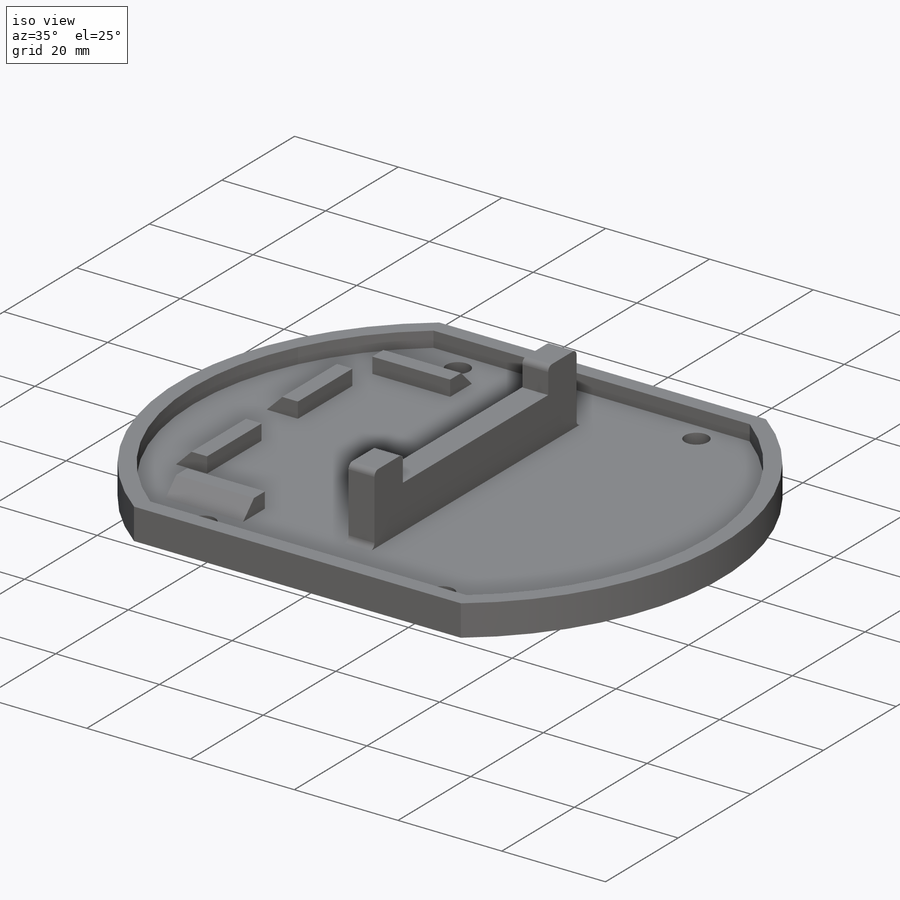
[diagram: iso view]
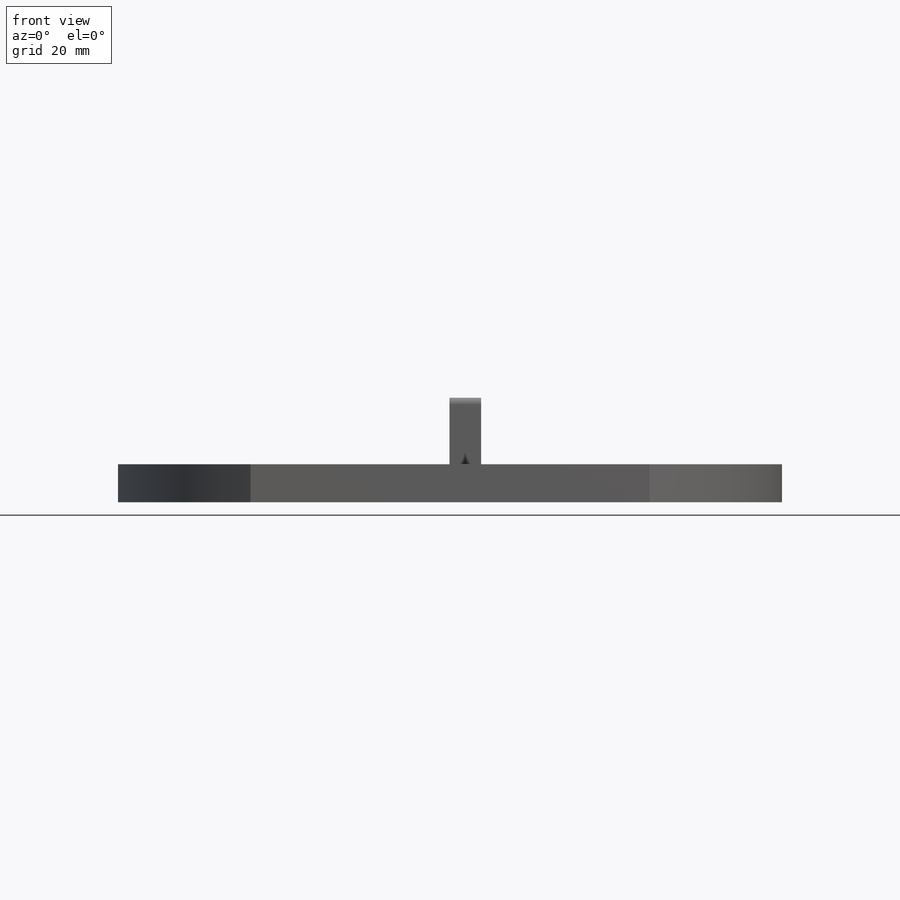
[diagram: front view]
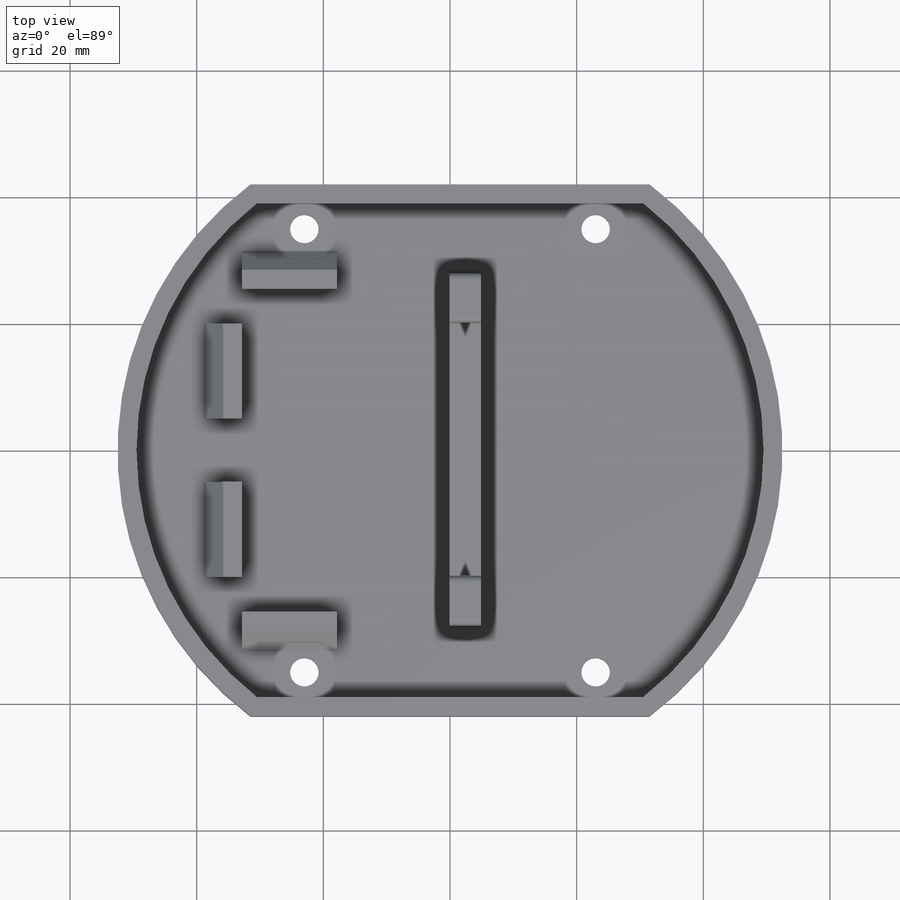
[diagram: top view]
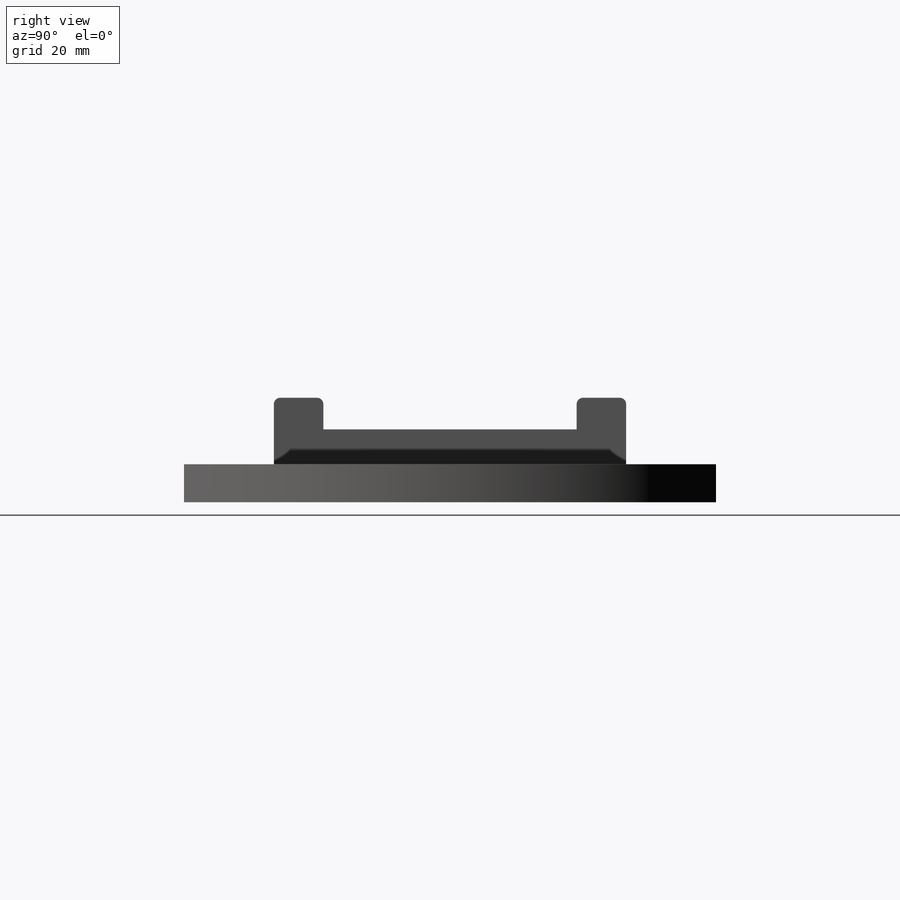
[diagram: right view]
SOLIDWORKS PART (.sldprt)
format: sldprt  version: not decoded by parser v0  size: 679,936 bytes
history: native  units: mm
features: sketch x7, extrude x7, fillet x2, material x1, chamfer x1 + 1 further entry (+19 scaffold rows collapsed; 5 parser-record rows omitted)
feature tree (43):
  scaffold x19  (default folders/planes/origin — collapsed)
  material  "ABS"
  "a_base_t42"
  parser-record x5  (decoder bookkeeping rows leaked as tree rows — omitted from the tree; the rows remain in map.json)
  sketch  "Sketch1"  dims[D1=0.0mm D2=3.0mm]
  extrude  "Outer Brim"  Depth=3mm
  sketch  "Sketch5"  dims[D1=25.5mm D2=15.0mm D3=3.0mm D4=11.425mm D5=44.25mm D6=10.0mm]
  extrude  "Base Supports"  [1 undecoded]
  chamfer  "Base Supports Chamfer"  Distance=3mm Angle=45deg
  sketch  "Sketch6"
  extrude  "Cover"  [1 undecoded]
  sketch  "Sketch2"  dims[c1.D1=10.5mm c1.D2=45.0mm c1.D3=23.5mm c2.D1=10.5mm c2.D2=45.0mm c2.D3=12.5mm]
  extrude  "Dynamixel Offset"  Depth=1.25mm
  sketch  "Sketch3"  dims[D1=3.0mm]
  extrude  "Dynamixel Side Support Walls"  Depth=5.6mm
  fillet  "Dynamixel Support Contouring"  Radius=1mm
  sketch  "Sketch7"  dims[c1.D1=5.0mm c1.D2=57.5mm c1.D3=55.64mm c2.D2=17.75mm]
  extrude  "Servo Side Supports"  Depth=8.5mm
  sketch  "Sketch8"  dims[D1=40.0mm]
  extrude  "Servo Side Extensions"  Depth=5mm
  fillet  "Servo Contouring"  Radius=1mm
decode coverage: 14 of 17 modeling features carry decoded parameters; 1 rows unclassified (native names shown)
note: 2 parameter values undecoded
note: suppression state not decoded; provenance and decode notes live in map.json
